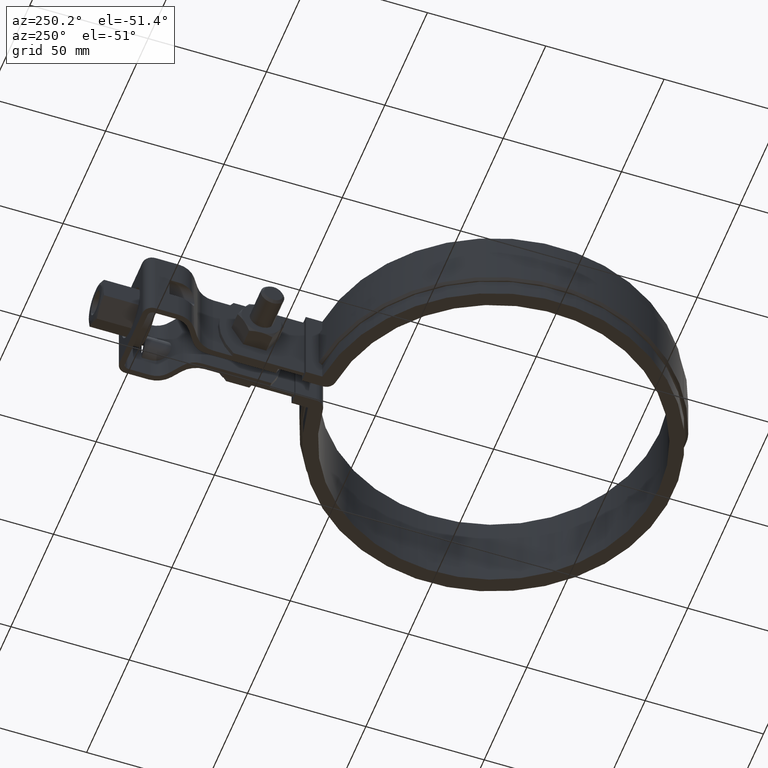
[diagram: clean part render]
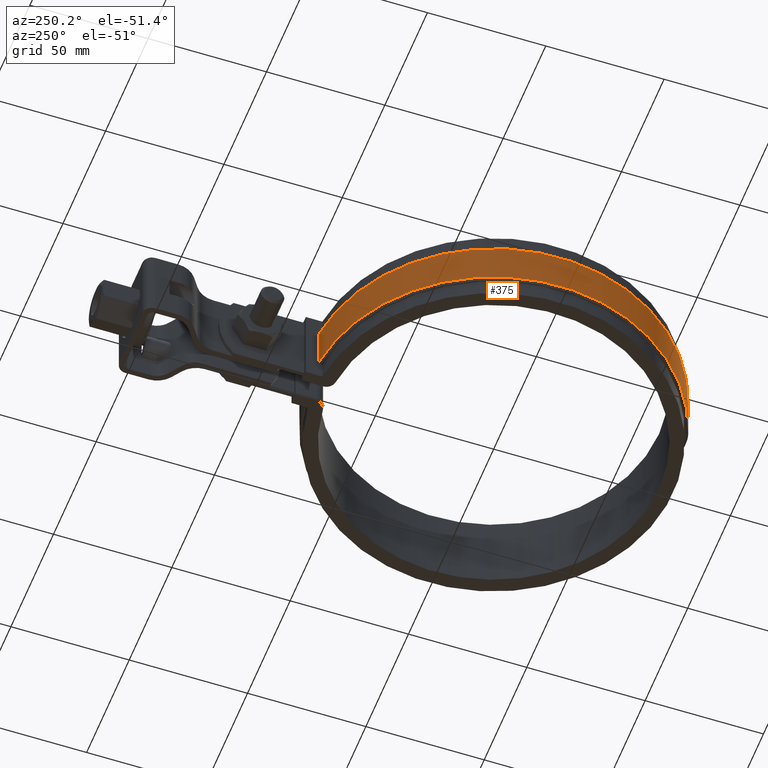
[diagram: same view with one face highlighted and labeled with its STEP entity id]
A machine part, auxiliary view. The second image highlights one B-rep face of the part: STEP entity #375.
In plain terms, the highlighted cylindrical surface (partial cylindrical patch) has radius 77.4 mm, axis along (0, 0, -1).
Its self-contained STEP definition (entity closure, byte-faithful):
#375 = ADVANCED_FACE( '', ( #623 ), #624, .T. );
#623 = FACE_OUTER_BOUND( '', #1758, .T. );
#624 = CYLINDRICAL_SURFACE( '', #1759, 77.4000000000000 );
#1758 = EDGE_LOOP( '', ( #3652, #3653, #3654, #3655 ) );
#1759 = AXIS2_PLACEMENT_3D( '', #3656, #3657, #3658 );
#3652 = ORIENTED_EDGE( '', *, *, #5161, .T. );
#3653 = ORIENTED_EDGE( '', *, *, #5132, .T. );
#3654 = ORIENTED_EDGE( '', *, *, #5116, .F. );
#3655 = ORIENTED_EDGE( '', *, *, #5123, .T. );
#3656 = CARTESIAN_POINT( '', ( -3.46944695195361E-015, -1.38777878078145E-014, -26.0000000000000 ) );
#3657 = DIRECTION( '', ( 0.000000000000000, 0.000000000000000, -1.00000000000000 ) );
#3658 = DIRECTION( '', ( 0.306337160039885, 0.951923076923077, 0.000000000000000 ) );
#5116 = EDGE_CURVE( '', #5701, #5703, #5704, .T. );
#5123 = EDGE_CURVE( '', #5701, #5712, #5714, .F. );
#5132 = EDGE_CURVE( '', #5723, #5703, #5727, .T. );
#5161 = EDGE_CURVE( '', #5712, #5723, #5770, .T. );
#5701 = VERTEX_POINT( '', #8231 );
#5703 = VERTEX_POINT( '', #8236 );
#5704 = LINE( '', #8237, #8238 );
#5712 = VERTEX_POINT( '', #8252 );
#5714 = CIRCLE( '', #8255, 77.4000000000000 );
#5723 = VERTEX_POINT( '', #8267 );
#5727 = CIRCLE( '', #8272, 77.4000000000000 );
#5770 = LINE( '', #8328, #8329 );
#8231 = CARTESIAN_POINT( '', ( -8.39999999999998, 76.9428359238207, -25.0000000000000 ) );
#8236 = CARTESIAN_POINT( '', ( -8.39999999999998, 76.9428359238207, -7.00000000000000 ) );
#8237 = CARTESIAN_POINT( '', ( -8.39999999999998, 76.9428359238207, -26.0000000000000 ) );
#8238 = VECTOR( '', #9437, 1000.00000000000 );
#8252 = CARTESIAN_POINT( '', ( -23.7104961870871, -73.6788461538461, -25.0000000000000 ) );
#8255 = AXIS2_PLACEMENT_3D( '', #9445, #9446, #9447 );
#8267 = CARTESIAN_POINT( '', ( -23.7104961870871, -73.6788461538461, -7.00000000000000 ) );
#8272 = AXIS2_PLACEMENT_3D( '', #9464, #9465, #9466 );
#8328 = CARTESIAN_POINT( '', ( -23.7104961870871, -73.6788461538461, -26.0000000000000 ) );
#8329 = VECTOR( '', #9525, 1000.00000000000 );
#9437 = DIRECTION( '', ( 0.000000000000000, 0.000000000000000, 1.00000000000000 ) );
#9445 = CARTESIAN_POINT( '', ( -3.46944695195361E-015, -1.38777878078145E-014, -25.0000000000000 ) );
#9446 = DIRECTION( '', ( 0.000000000000000, 0.000000000000000, -1.00000000000000 ) );
#9447 = DIRECTION( '', ( -1.00000000000000, 0.000000000000000, 0.000000000000000 ) );
#9464 = CARTESIAN_POINT( '', ( -3.46944695195361E-015, -1.38777878078145E-014, -7.00000000000000 ) );
#9465 = DIRECTION( '', ( 0.000000000000000, 0.000000000000000, -1.00000000000000 ) );
#9466 = DIRECTION( '', ( -1.00000000000000, 0.000000000000000, 0.000000000000000 ) );
#9525 = DIRECTION( '', ( 0.000000000000000, 0.000000000000000, 1.00000000000000 ) );